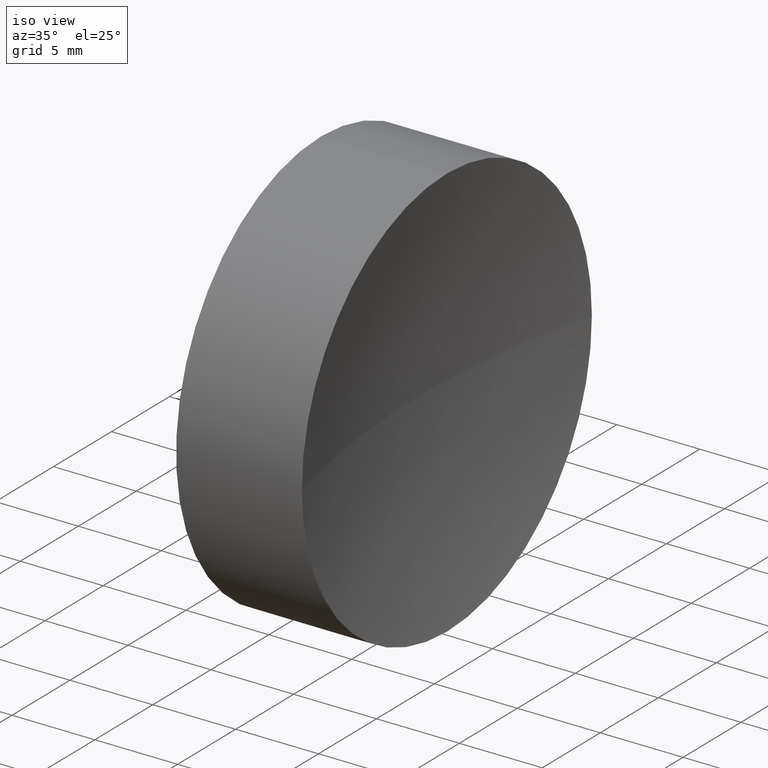
[diagram: clean part render]
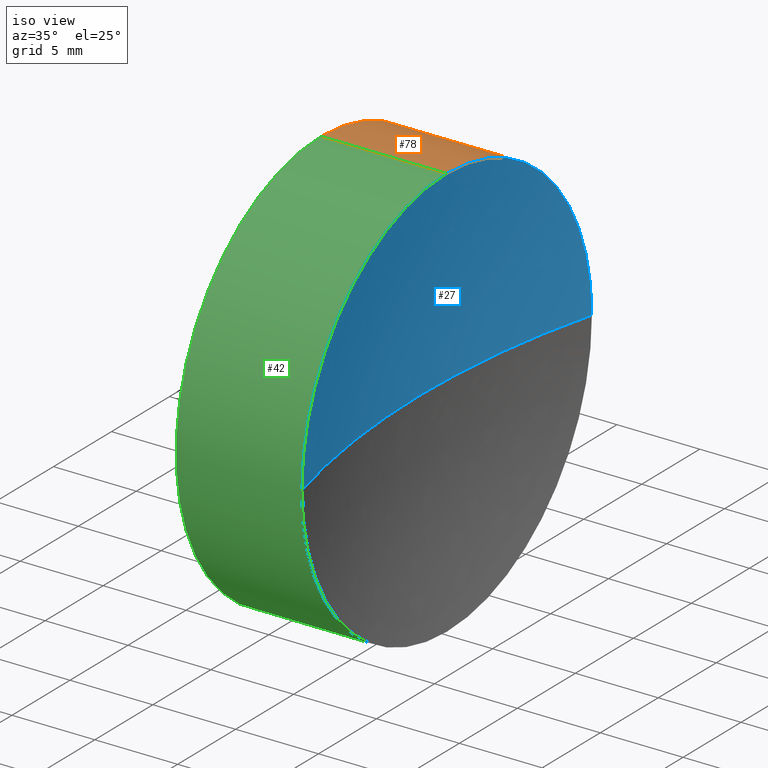
[diagram: same view with three faces highlighted in distinct colors, each labeled with its STEP entity id]
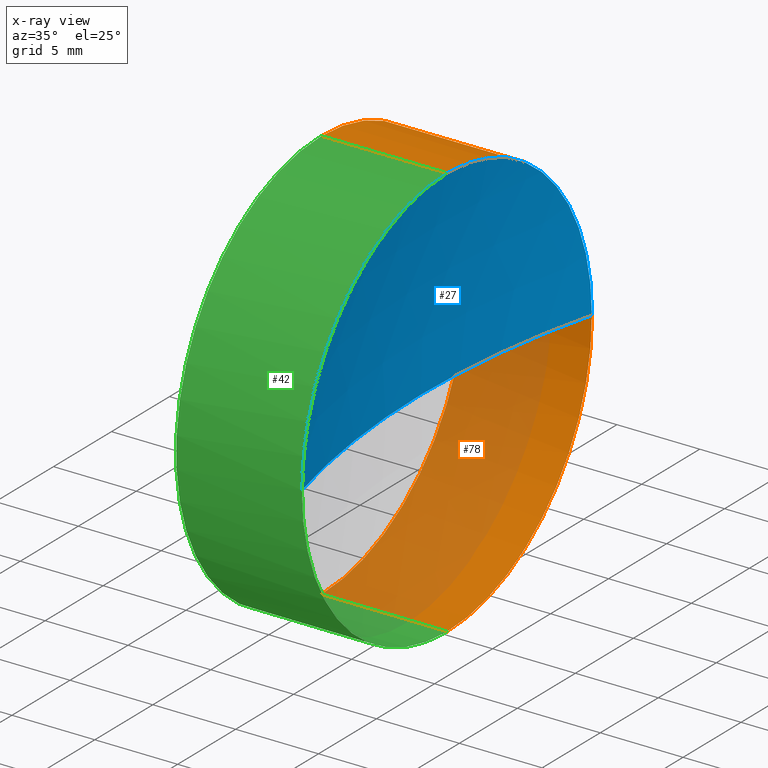
[diagram: x-ray of the same camera — body ghosted, the three highlighted faces saturated]
A machine part, iso view with three faces highlighted in distinct colors.
The next image is the same camera in x-ray (body ghosted, the three faces saturated) — at least one of them is partly hidden behind the body in this view.
Their STEP definitions:

[orange] entity #78 — the highlighted cylindrical surface (partial cylindrical patch) has radius 12.5 mm, axis along (-1, -0, -0).
#6 = EDGE_CURVE ( 'NONE', #60, #18, #183, .T. ) ;
#15 = CARTESIAN_POINT ( 'NONE',  ( 115.0926555349195200, 69.37802112337243400, 0.0000000000000000000 ) ) ;
#18 = VERTEX_POINT ( 'NONE', #107 ) ;
#20 = CIRCLE ( 'NONE', #48, 12.50000000000001100 ) ;
#22 = ORIENTED_EDGE ( 'NONE', *, *, #43, .T. ) ;
#23 = ORIENTED_EDGE ( 'NONE', *, *, #32, .T. ) ;
#31 = CARTESIAN_POINT ( 'NONE',  ( 122.6803637136740500, 69.37802112337243400, 0.0000000000000000000 ) ) ;
#32 = EDGE_CURVE ( 'NONE', #61, #132, #35, .T. ) ;
#35 = LINE ( 'NONE', #62, #152 ) ;
#41 = EDGE_CURVE ( 'NONE', #60, #69, #140, .T. ) ;
#43 = EDGE_CURVE ( 'NONE', #69, #61, #20, .T. ) ;
#44 = DIRECTION ( 'NONE',  ( 0.0000000000000000000, 0.0000000000000000000, 1.000000000000000000 ) ) ;
#46 = CARTESIAN_POINT ( 'NONE',  ( 122.6803637136740500, 69.37802112337243400, -12.50000000000000900 ) ) ;
#48 = AXIS2_PLACEMENT_3D ( 'NONE', #31, #158, #44 ) ;
#50 = ORIENTED_EDGE ( 'NONE', *, *, #6, .F. ) ;
#57 = FACE_OUTER_BOUND ( 'NONE', #117, .T. ) ;
#58 = CIRCLE ( 'NONE', #74, 12.49999999999999600 ) ;
#60 = VERTEX_POINT ( 'NONE', #84 ) ;
#61 = VERTEX_POINT ( 'NONE', #46 ) ;
#62 = CARTESIAN_POINT ( 'NONE',  ( 108.9851430021651000, 69.37802112337243400, -12.50000000000000400 ) ) ;
#64 = DIRECTION ( 'NONE',  ( 0.0000000000000000000, 0.0000000000000000000, 1.000000000000000000 ) ) ;
#65 = CARTESIAN_POINT ( 'NONE',  ( 108.9851430021651000, 69.37802112337243400, 0.0000000000000000000 ) ) ;
#69 = VERTEX_POINT ( 'NONE', #155 ) ;
#74 = AXIS2_PLACEMENT_3D ( 'NONE', #15, #102, #64 ) ;
#75 = ORIENTED_EDGE ( 'NONE', *, *, #127, .F. ) ;
#78 = ADVANCED_FACE ( 'NONE', ( #57 ), #175, .T. ) ;
#81 = DIRECTION ( 'NONE',  ( 0.0000000000000000000, 0.0000000000000000000, 1.000000000000000000 ) ) ;
#83 = DIRECTION ( 'NONE',  ( -1.000000000000000000, -0.0000000000000000000, -0.0000000000000000000 ) ) ;
#84 = CARTESIAN_POINT ( 'NONE',  ( 122.6803637136740500, 69.37802112337243400, 12.50000000000000900 ) ) ;
#102 = DIRECTION ( 'NONE',  ( -1.000000000000000000, -0.0000000000000000000, -0.0000000000000000000 ) ) ;
#107 = CARTESIAN_POINT ( 'NONE',  ( 115.0926555349195200, 69.37802112337243400, 12.49999999999999600 ) ) ;
#117 = EDGE_LOOP ( 'NONE', ( #22, #23, #75, #50, #151 ) ) ;
#123 = CARTESIAN_POINT ( 'NONE',  ( 108.9851430021651000, 69.37802112337243400, 12.50000000000000400 ) ) ;
#125 = DIRECTION ( 'NONE',  ( -1.000000000000000000, -0.0000000000000000000, -0.0000000000000000000 ) ) ;
#127 = EDGE_CURVE ( 'NONE', #18, #132, #58, .T. ) ;
#132 = VERTEX_POINT ( 'NONE', #161 ) ;
#134 = AXIS2_PLACEMENT_3D ( 'NONE', #172, #83, #81 ) ;
#140 = CIRCLE ( 'NONE', #134, 12.50000000000001100 ) ;
#151 = ORIENTED_EDGE ( 'NONE', *, *, #41, .T. ) ;
#152 = VECTOR ( 'NONE', #160, 1000.000000000000000 ) ;
#153 = VECTOR ( 'NONE', #186, 1000.000000000000000 ) ;
#154 = AXIS2_PLACEMENT_3D ( 'NONE', #65, #125, #156 ) ;
#155 = CARTESIAN_POINT ( 'NONE',  ( 122.6803637136740500, 81.87802112337244900, 1.530808498934192700E-015 ) ) ;
#156 = DIRECTION ( 'NONE',  ( 0.0000000000000000000, 0.0000000000000000000, 1.000000000000000000 ) ) ;
#158 = DIRECTION ( 'NONE',  ( -1.000000000000000000, -0.0000000000000000000, -0.0000000000000000000 ) ) ;
#160 = DIRECTION ( 'NONE',  ( -1.000000000000000000, -0.0000000000000000000, -0.0000000000000000000 ) ) ;
#161 = CARTESIAN_POINT ( 'NONE',  ( 115.0926555349195200, 69.37802112337243400, -12.49999999999999600 ) ) ;
#172 = CARTESIAN_POINT ( 'NONE',  ( 122.6803637136740500, 69.37802112337243400, 0.0000000000000000000 ) ) ;
#175 = CYLINDRICAL_SURFACE ( 'NONE', #154, 12.50000000000000400 ) ;
#183 = LINE ( 'NONE', #123, #153 ) ;
#186 = DIRECTION ( 'NONE',  ( -1.000000000000000000, -0.0000000000000000000, -0.0000000000000000000 ) ) ;

[blue] entity #27 — the highlighted spherical surface has radius 50 mm.
#2 = DIRECTION ( 'NONE',  ( 0.0000000000000000000, 0.0000000000000000000, 1.000000000000000000 ) ) ;
#7 = CIRCLE ( 'NONE', #128, 50.00000000000000000 ) ;
#8 = AXIS2_PLACEMENT_3D ( 'NONE', #148, #182, #145 ) ;
#13 = CIRCLE ( 'NONE', #121, 12.50000000000001100 ) ;
#17 = ORIENTED_EDGE ( 'NONE', *, *, #185, .F. ) ;
#21 = DIRECTION ( 'NONE',  ( 0.0000000000000000000, -1.224646799147353200E-016, 1.000000000000000000 ) ) ;
#24 = VERTEX_POINT ( 'NONE', #170 ) ;
#27 = ADVANCED_FACE ( 'NONE', ( #169 ), #105, .F. ) ;
#29 = VERTEX_POINT ( 'NONE', #124 ) ;
#36 = DIRECTION ( 'NONE',  ( -1.000000000000000000, -0.0000000000000000000, -0.0000000000000000000 ) ) ;
#38 = CARTESIAN_POINT ( 'NONE',  ( 171.0926555412667700, 69.37802112337243400, 0.0000000000000000000 ) ) ;
#41 = EDGE_CURVE ( 'NONE', #60, #69, #140, .T. ) ;
#45 = CARTESIAN_POINT ( 'NONE',  ( 171.0926555412667700, 69.37802112337243400, 0.0000000000000000000 ) ) ;
#51 = DIRECTION ( 'NONE',  ( 0.0000000000000000000, -1.000000000000000000, -1.224646799147353200E-016 ) ) ;
#52 = CIRCLE ( 'NONE', #8, 50.00000000000000000 ) ;
#56 = ORIENTED_EDGE ( 'NONE', *, *, #137, .T. ) ;
#60 = VERTEX_POINT ( 'NONE', #84 ) ;
#69 = VERTEX_POINT ( 'NONE', #155 ) ;
#80 = DIRECTION ( 'NONE',  ( 0.0000000000000000000, 0.0000000000000000000, 1.000000000000000000 ) ) ;
#81 = DIRECTION ( 'NONE',  ( 0.0000000000000000000, 0.0000000000000000000, 1.000000000000000000 ) ) ;
#83 = DIRECTION ( 'NONE',  ( -1.000000000000000000, -0.0000000000000000000, -0.0000000000000000000 ) ) ;
#84 = CARTESIAN_POINT ( 'NONE',  ( 122.6803637136740500, 69.37802112337243400, 12.50000000000000900 ) ) ;
#89 = AXIS2_PLACEMENT_3D ( 'NONE', #45, #80, #136 ) ;
#95 = CARTESIAN_POINT ( 'NONE',  ( 122.6803637136740500, 69.37802112337243400, 0.0000000000000000000 ) ) ;
#100 = ORIENTED_EDGE ( 'NONE', *, *, #159, .F. ) ;
#105 = SPHERICAL_SURFACE ( 'NONE', #89, 50.00000000000000000 ) ;
#108 = EDGE_LOOP ( 'NONE', ( #100, #165, #17, #56 ) ) ;
#121 = AXIS2_PLACEMENT_3D ( 'NONE', #95, #36, #2 ) ;
#124 = CARTESIAN_POINT ( 'NONE',  ( 122.6803637136740500, 56.87802112337242700, 0.0000000000000000000 ) ) ;
#128 = AXIS2_PLACEMENT_3D ( 'NONE', #38, #21, #51 ) ;
#134 = AXIS2_PLACEMENT_3D ( 'NONE', #172, #83, #81 ) ;
#136 = DIRECTION ( 'NONE',  ( 0.0000000000000000000, -1.000000000000000000, 0.0000000000000000000 ) ) ;
#137 = EDGE_CURVE ( 'NONE', #29, #24, #52, .T. ) ;
#140 = CIRCLE ( 'NONE', #134, 12.50000000000001100 ) ;
#145 = DIRECTION ( 'NONE',  ( -1.000000000000000000, 0.0000000000000000000, 0.0000000000000000000 ) ) ;
#148 = CARTESIAN_POINT ( 'NONE',  ( 171.0926555412667700, 69.37802112337243400, 0.0000000000000000000 ) ) ;
#155 = CARTESIAN_POINT ( 'NONE',  ( 122.6803637136740500, 81.87802112337244900, 1.530808498934192700E-015 ) ) ;
#159 = EDGE_CURVE ( 'NONE', #69, #24, #7, .T. ) ;
#165 = ORIENTED_EDGE ( 'NONE', *, *, #41, .F. ) ;
#169 = FACE_OUTER_BOUND ( 'NONE', #108, .T. ) ;
#170 = CARTESIAN_POINT ( 'NONE',  ( 121.0926555412667700, 69.37802112337243400, 0.0000000000000000000 ) ) ;
#172 = CARTESIAN_POINT ( 'NONE',  ( 122.6803637136740500, 69.37802112337243400, 0.0000000000000000000 ) ) ;
#182 = DIRECTION ( 'NONE',  ( 0.0000000000000000000, 0.0000000000000000000, -1.000000000000000000 ) ) ;
#185 = EDGE_CURVE ( 'NONE', #29, #60, #13, .T. ) ;

[green] entity #42 — the highlighted cylindrical surface (partial cylindrical patch) has radius 12.5 mm, axis along (-1, -0, -0).
#2 = DIRECTION ( 'NONE',  ( 0.0000000000000000000, 0.0000000000000000000, 1.000000000000000000 ) ) ;
#6 = EDGE_CURVE ( 'NONE', #60, #18, #183, .T. ) ;
#9 = CARTESIAN_POINT ( 'NONE',  ( 122.6803637136740500, 69.37802112337243400, 0.0000000000000000000 ) ) ;
#10 = ORIENTED_EDGE ( 'NONE', *, *, #54, .T. ) ;
#12 = FACE_OUTER_BOUND ( 'NONE', #77, .T. ) ;
#13 = CIRCLE ( 'NONE', #121, 12.50000000000001100 ) ;
#14 = DIRECTION ( 'NONE',  ( 0.0000000000000000000, 0.0000000000000000000, 1.000000000000000000 ) ) ;
#18 = VERTEX_POINT ( 'NONE', #107 ) ;
#29 = VERTEX_POINT ( 'NONE', #124 ) ;
#32 = EDGE_CURVE ( 'NONE', #61, #132, #35, .T. ) ;
#34 = DIRECTION ( 'NONE',  ( -1.000000000000000000, -0.0000000000000000000, -0.0000000000000000000 ) ) ;
#35 = LINE ( 'NONE', #62, #152 ) ;
#36 = DIRECTION ( 'NONE',  ( -1.000000000000000000, -0.0000000000000000000, -0.0000000000000000000 ) ) ;
#42 = ADVANCED_FACE ( 'NONE', ( #12 ), #72, .T. ) ;
#46 = CARTESIAN_POINT ( 'NONE',  ( 122.6803637136740500, 69.37802112337243400, -12.50000000000000900 ) ) ;
#54 = EDGE_CURVE ( 'NONE', #61, #29, #101, .T. ) ;
#60 = VERTEX_POINT ( 'NONE', #84 ) ;
#61 = VERTEX_POINT ( 'NONE', #46 ) ;
#62 = CARTESIAN_POINT ( 'NONE',  ( 108.9851430021651000, 69.37802112337243400, -12.50000000000000400 ) ) ;
#66 = AXIS2_PLACEMENT_3D ( 'NONE', #92, #34, #109 ) ;
#68 = EDGE_CURVE ( 'NONE', #132, #18, #180, .T. ) ;
#72 = CYLINDRICAL_SURFACE ( 'NONE', #66, 12.50000000000000400 ) ;
#77 = EDGE_LOOP ( 'NONE', ( #143, #10, #171, #144, #174 ) ) ;
#84 = CARTESIAN_POINT ( 'NONE',  ( 122.6803637136740500, 69.37802112337243400, 12.50000000000000900 ) ) ;
#92 = CARTESIAN_POINT ( 'NONE',  ( 108.9851430021651000, 69.37802112337243400, 0.0000000000000000000 ) ) ;
#93 = DIRECTION ( 'NONE',  ( -1.000000000000000000, -0.0000000000000000000, -0.0000000000000000000 ) ) ;
#95 = CARTESIAN_POINT ( 'NONE',  ( 122.6803637136740500, 69.37802112337243400, 0.0000000000000000000 ) ) ;
#98 = AXIS2_PLACEMENT_3D ( 'NONE', #119, #130, #14 ) ;
#101 = CIRCLE ( 'NONE', #149, 12.50000000000001100 ) ;
#107 = CARTESIAN_POINT ( 'NONE',  ( 115.0926555349195200, 69.37802112337243400, 12.49999999999999600 ) ) ;
#109 = DIRECTION ( 'NONE',  ( 0.0000000000000000000, 0.0000000000000000000, 1.000000000000000000 ) ) ;
#119 = CARTESIAN_POINT ( 'NONE',  ( 115.0926555349195200, 69.37802112337243400, 0.0000000000000000000 ) ) ;
#121 = AXIS2_PLACEMENT_3D ( 'NONE', #95, #36, #2 ) ;
#123 = CARTESIAN_POINT ( 'NONE',  ( 108.9851430021651000, 69.37802112337243400, 12.50000000000000400 ) ) ;
#124 = CARTESIAN_POINT ( 'NONE',  ( 122.6803637136740500, 56.87802112337242700, 0.0000000000000000000 ) ) ;
#130 = DIRECTION ( 'NONE',  ( -1.000000000000000000, -0.0000000000000000000, -0.0000000000000000000 ) ) ;
#132 = VERTEX_POINT ( 'NONE', #161 ) ;
#139 = DIRECTION ( 'NONE',  ( 0.0000000000000000000, 0.0000000000000000000, 1.000000000000000000 ) ) ;
#143 = ORIENTED_EDGE ( 'NONE', *, *, #32, .F. ) ;
#144 = ORIENTED_EDGE ( 'NONE', *, *, #6, .T. ) ;
#149 = AXIS2_PLACEMENT_3D ( 'NONE', #9, #93, #139 ) ;
#152 = VECTOR ( 'NONE', #160, 1000.000000000000000 ) ;
#153 = VECTOR ( 'NONE', #186, 1000.000000000000000 ) ;
#160 = DIRECTION ( 'NONE',  ( -1.000000000000000000, -0.0000000000000000000, -0.0000000000000000000 ) ) ;
#161 = CARTESIAN_POINT ( 'NONE',  ( 115.0926555349195200, 69.37802112337243400, -12.49999999999999600 ) ) ;
#171 = ORIENTED_EDGE ( 'NONE', *, *, #185, .T. ) ;
#174 = ORIENTED_EDGE ( 'NONE', *, *, #68, .F. ) ;
#180 = CIRCLE ( 'NONE', #98, 12.49999999999999600 ) ;
#183 = LINE ( 'NONE', #123, #153 ) ;
#185 = EDGE_CURVE ( 'NONE', #29, #60, #13, .T. ) ;
#186 = DIRECTION ( 'NONE',  ( -1.000000000000000000, -0.0000000000000000000, -0.0000000000000000000 ) ) ;